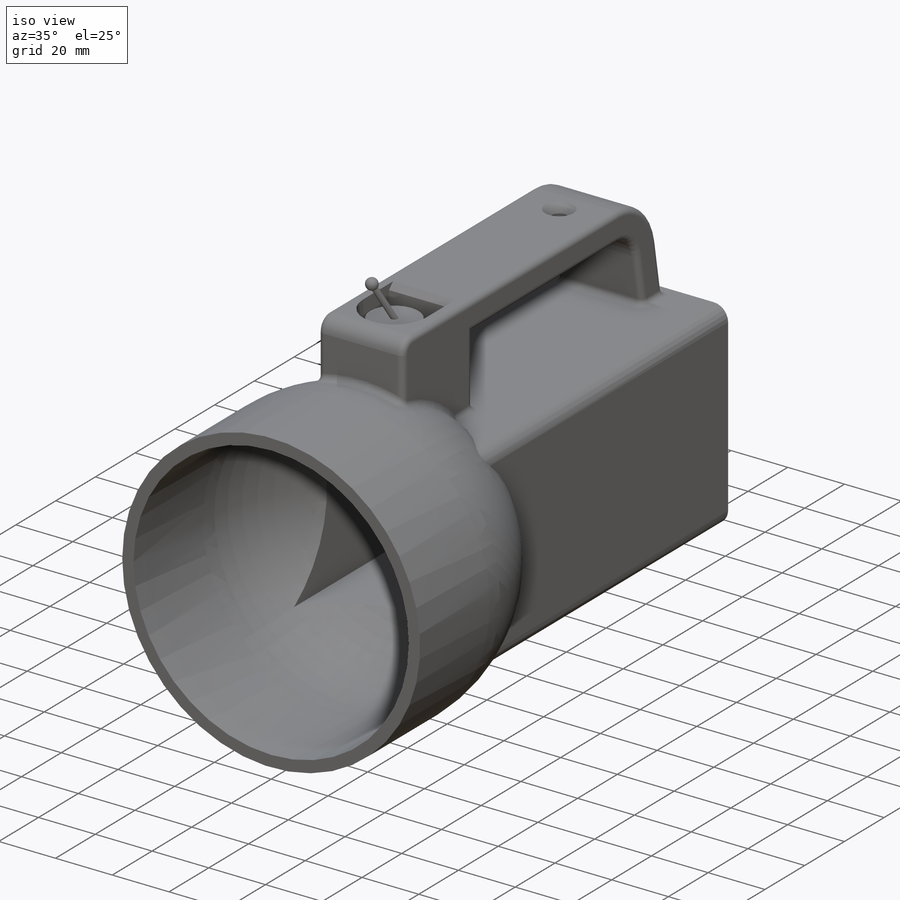
[diagram: iso view]
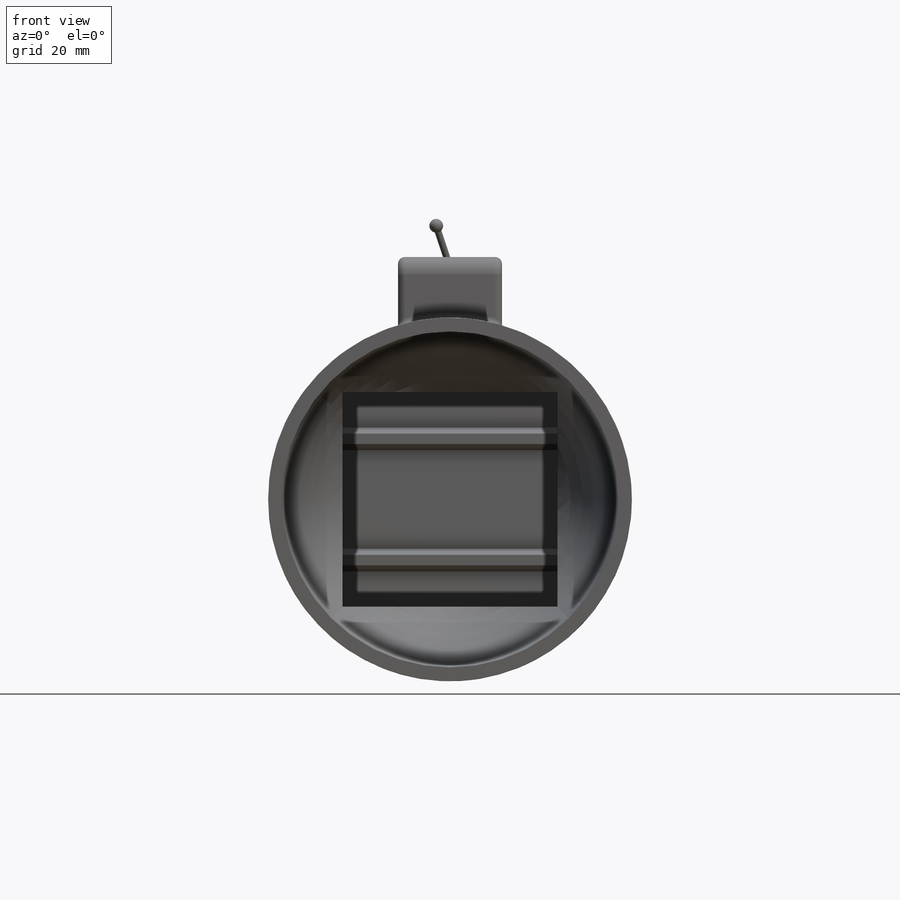
[diagram: front view]
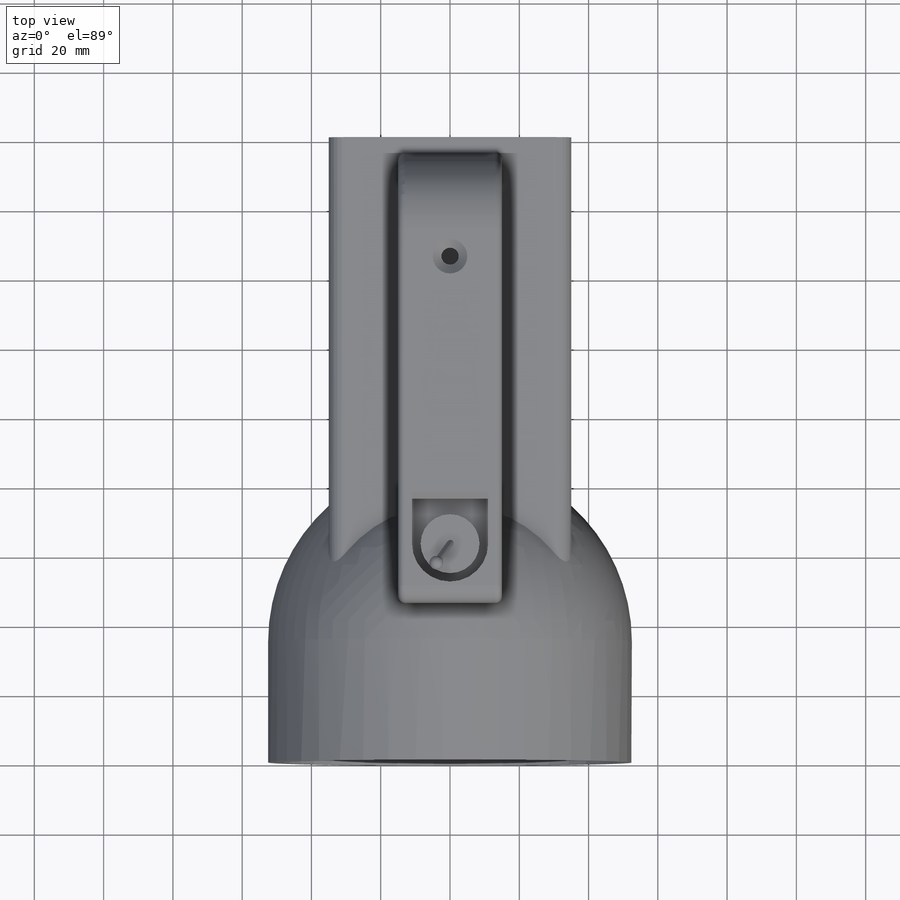
[diagram: top view]
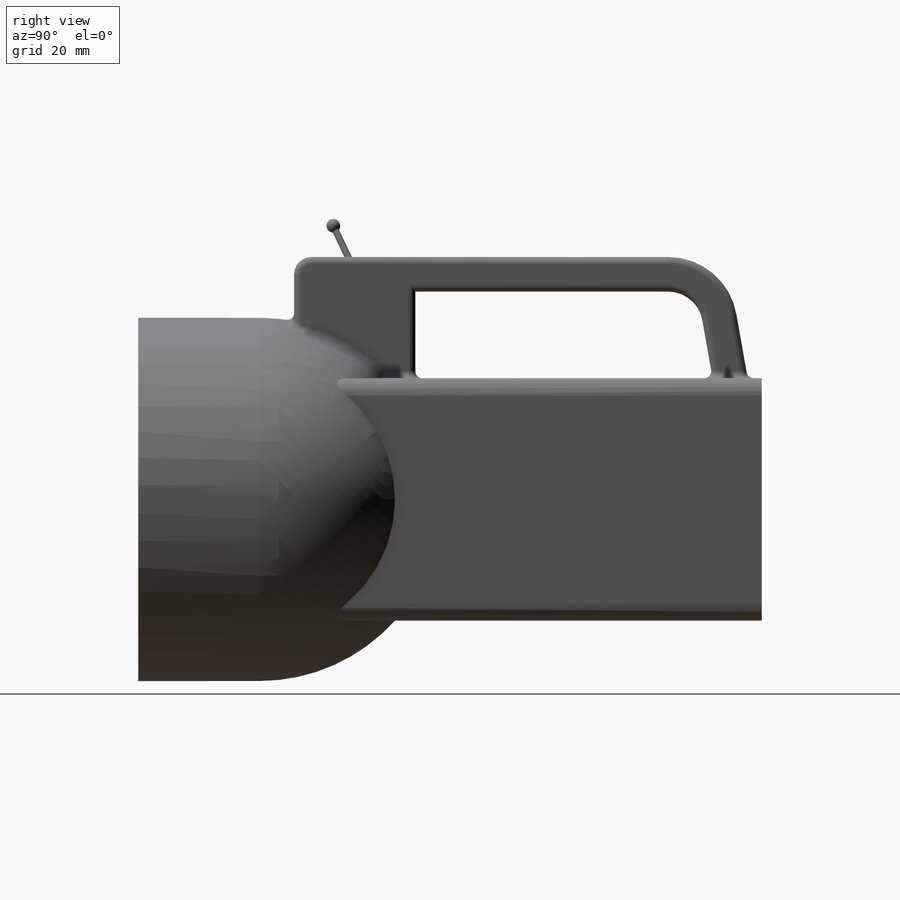
[diagram: right view]
SOLIDWORKS PART (.sldprt)
format: sldprt  version: not decoded by parser v0  size: 552,448 bytes
history: native  units: mm
features: sketch x13, extrude x4, fillet x3, revolve x2, plane x2, material x1, shell x1, hole x1, cut_extrude x1, chamfer x1 + 1 further entry (+14 scaffold rows collapsed)
feature tree (44):
  scaffold x14  (default folders/planes/origin — collapsed)
  material  "Material <not specified>"
  "Design Table"
  sketch  "Sketch1"  dims[c1.D1=70.0mm c1.D2=80.0mm c2.D2=270.0deg c3.D2=70.0mm]
  extrude  "Boss-Extrude2"  Depth=180mm
  sketch  "Sketch4"  dims[D1=35.0mm D2=105.0mm]
  revolve  "Revolve3"  Angle=360deg
  shell  "Shell1"  Thickness=4mm
  fillet  "Fillet1"  Radius=5mm
  sketch  "Sketch6"  dims[c1.D6=10.0mm c1.D7=20.0mm c1.D1=45.0mm c1.D2=35.0mm c1.D3=73.0mm c1.D4=35.0mm c1.D5=~32.886462mm c2.D5=10.0deg c2.D8=10.0mm c2.D2=35.0mm]
  extrude  "Boss-Extrude3"  Depth=30mm
  sketch  "Sketch7"  dims[D1=35.0mm]
  extrude  "Boss-Extrude4"  [1 undecoded]
  hole  "CSK for M2 Flat Head Machine Screw1"  Diameter=5mm Depth=10mm
  sketch  "Sketch12"  dims[D1=35.0mm]
  sketch  "Sketch11"  dims[hole-wizard template sketch: 54 standard entries collapsed; hole parameters kept: c17.Thru Hole Dia.=5.0mm c17.Thru Hole Depth=10.0mm c17.Near C'Sink Dia.=10.0mm c17.D4=~3.666174mm c17.Near C'Sink Angle=90.0deg]
  sketch  "Sketch13"  dims[D1=11.0mm D2=13.0mm D3=75.0mm]
  cut_extrude  "Cut-Extrude1"  Depth=10mm
  sketch  "Sketch14"  dims[c1.D1=17.0mm c1.D2=~45.580138mm c2.D2=35.0deg]
  extrude  "Boss-Extrude5"  Depth=7mm
  fillet  "Fillet2"  Radius=5mm
  fillet  "Fillet3"  Radius=2mm
  chamfer  "Chamfer1"  Distance=2mm Angle=45deg
  sketch  "Sketch15"
  plane  "Plane1"
  sketch  "Sketch17"
  sketch  "Sketch18"  dims[c1.D3=2.0mm c1.D1=~89.200617mm c2.D1=60.0deg c2.D2=2.0mm c2.D4=12.0mm]
  revolve  "Revolve4"  Angle=360deg
  sketch  "Sketch20"
  plane  "Plane2"  Offset=10mm
  sketch  "Sketch22"  dims[c1.D1=17.5mm c1.D2=35.0mm c2.D1=3.0mm c2.D3=10.0deg]
decode coverage: 22 of 26 modeling features carry decoded parameters; 1 rows unclassified (native names shown)
note: ~ marks probable driven/reference dimensions
note: 1 parameter value undecoded
note: suppression state not decoded; provenance and decode notes live in map.json
